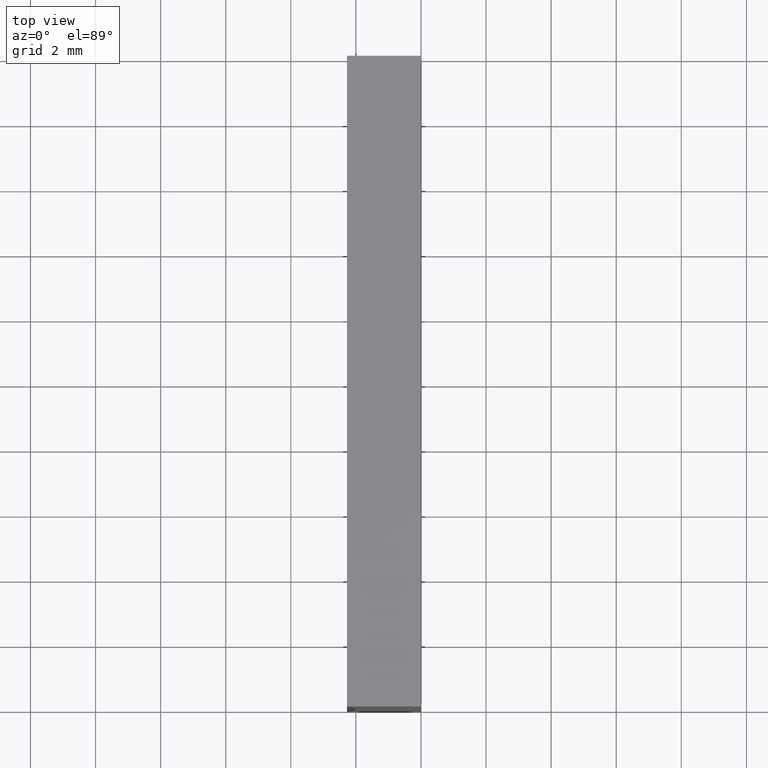
[diagram: clean part render]
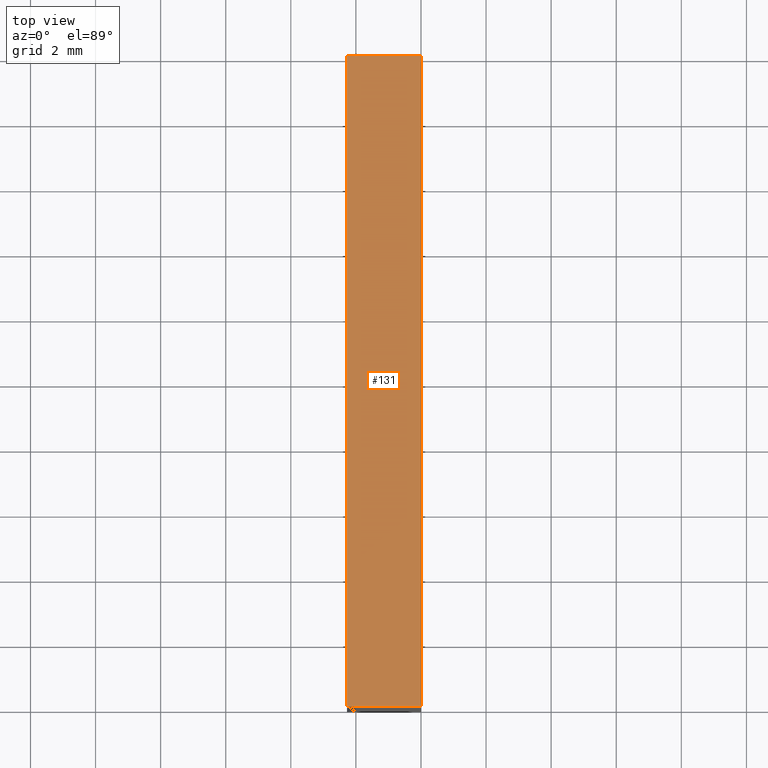
[diagram: same view with one face highlighted and labeled with its STEP entity id]
A machine part, top view. The second image highlights one B-rep face of the part: STEP entity #131.
In plain terms, the highlighted planar face has unit normal (-0, 0, -1).
Its self-contained STEP definition (entity closure, byte-faithful):
#3 = DIRECTION ( 'NONE',  ( 1.000000000000000000, -0.0000000000000000000, -7.630378568483683100E-016 ) ) ;
#7 = ORIENTED_EDGE ( 'NONE', *, *, #85, .T. ) ;
#14 = ORIENTED_EDGE ( 'NONE', *, *, #199, .F. ) ;
#16 = LINE ( 'NONE', #120, #87 ) ;
#22 = CARTESIAN_POINT ( 'NONE',  ( -2.273443526304006900, 0.0000000000000000000, 10.00000000000000200 ) ) ;
#23 = VERTEX_POINT ( 'NONE', #82 ) ;
#26 = LINE ( 'NONE', #165, #137 ) ;
#33 = EDGE_LOOP ( 'NONE', ( #7, #14, #171, #63 ) ) ;
#35 = VERTEX_POINT ( 'NONE', #117 ) ;
#36 = EDGE_CURVE ( 'NONE', #169, #23, #204, .T. ) ;
#54 = CARTESIAN_POINT ( 'NONE',  ( 6.123233995736766300E-016, 20.00000000000000000, 10.00000000000000000 ) ) ;
#63 = ORIENTED_EDGE ( 'NONE', *, *, #114, .T. ) ;
#65 = CARTESIAN_POINT ( 'NONE',  ( -2.273443526304006900, 20.00000000000000000, 10.00000000000000200 ) ) ;
#73 = FACE_OUTER_BOUND ( 'NONE', #33, .T. ) ;
#81 = VERTEX_POINT ( 'NONE', #22 ) ;
#82 = CARTESIAN_POINT ( 'NONE',  ( 6.123233995736766300E-016, 20.00000000000000000, 10.00000000000000000 ) ) ;
#85 = EDGE_CURVE ( 'NONE', #81, #35, #16, .T. ) ;
#87 = VECTOR ( 'NONE', #3, 1000.000000000000000 ) ;
#104 = PLANE ( 'NONE',  #185 ) ;
#105 = DIRECTION ( 'NONE',  ( -1.000000000000000000, 0.0000000000000000000, 7.630378568483685100E-016 ) ) ;
#107 = DIRECTION ( 'NONE',  ( -7.630378568483685100E-016, 0.0000000000000000000, -1.000000000000000000 ) ) ;
#114 = EDGE_CURVE ( 'NONE', #169, #81, #26, .T. ) ;
#117 = CARTESIAN_POINT ( 'NONE',  ( 6.123233995736766300E-016, 0.0000000000000000000, 10.00000000000000000 ) ) ;
#118 = DIRECTION ( 'NONE',  ( -0.0000000000000000000, -1.000000000000000000, -0.0000000000000000000 ) ) ;
#120 = CARTESIAN_POINT ( 'NONE',  ( 6.123233995736766300E-016, 0.0000000000000000000, 10.00000000000000000 ) ) ;
#131 = ADVANCED_FACE ( 'NONE', ( #73 ), #104, .F. ) ;
#134 = VECTOR ( 'NONE', #193, 1000.000000000000000 ) ;
#135 = CARTESIAN_POINT ( 'NONE',  ( 6.123233995736766300E-016, 20.00000000000000000, 10.00000000000000000 ) ) ;
#136 = CARTESIAN_POINT ( 'NONE',  ( 6.123233995736766300E-016, 20.00000000000000000, 10.00000000000000000 ) ) ;
#137 = VECTOR ( 'NONE', #118, 1000.000000000000000 ) ;
#142 = LINE ( 'NONE', #136, #134 ) ;
#165 = CARTESIAN_POINT ( 'NONE',  ( -2.273443526304006900, 20.00000000000000000, 10.00000000000000200 ) ) ;
#169 = VERTEX_POINT ( 'NONE', #65 ) ;
#170 = VECTOR ( 'NONE', #203, 1000.000000000000000 ) ;
#171 = ORIENTED_EDGE ( 'NONE', *, *, #36, .F. ) ;
#185 = AXIS2_PLACEMENT_3D ( 'NONE', #135, #107, #105 ) ;
#193 = DIRECTION ( 'NONE',  ( -0.0000000000000000000, -1.000000000000000000, -0.0000000000000000000 ) ) ;
#199 = EDGE_CURVE ( 'NONE', #23, #35, #142, .T. ) ;
#203 = DIRECTION ( 'NONE',  ( 1.000000000000000000, -0.0000000000000000000, -7.630378568483683100E-016 ) ) ;
#204 = LINE ( 'NONE', #54, #170 ) ;